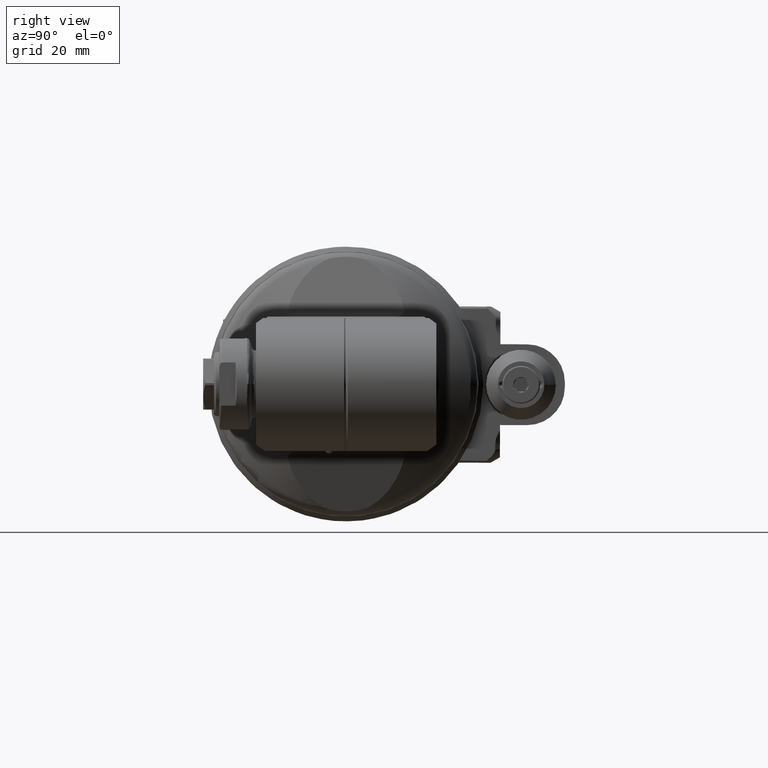
[diagram: clean part render]
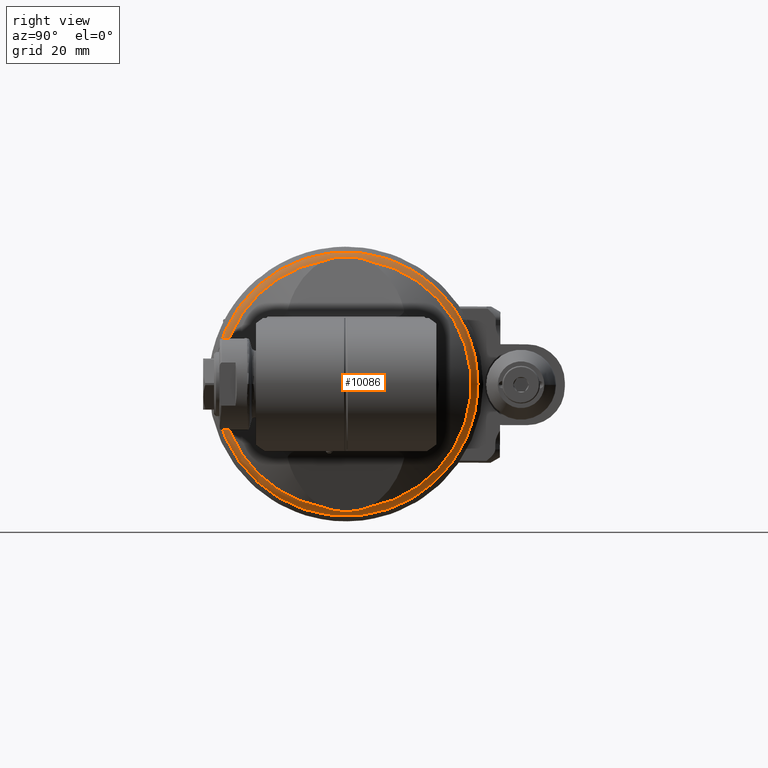
[diagram: same view with one face highlighted and labeled with its STEP entity id]
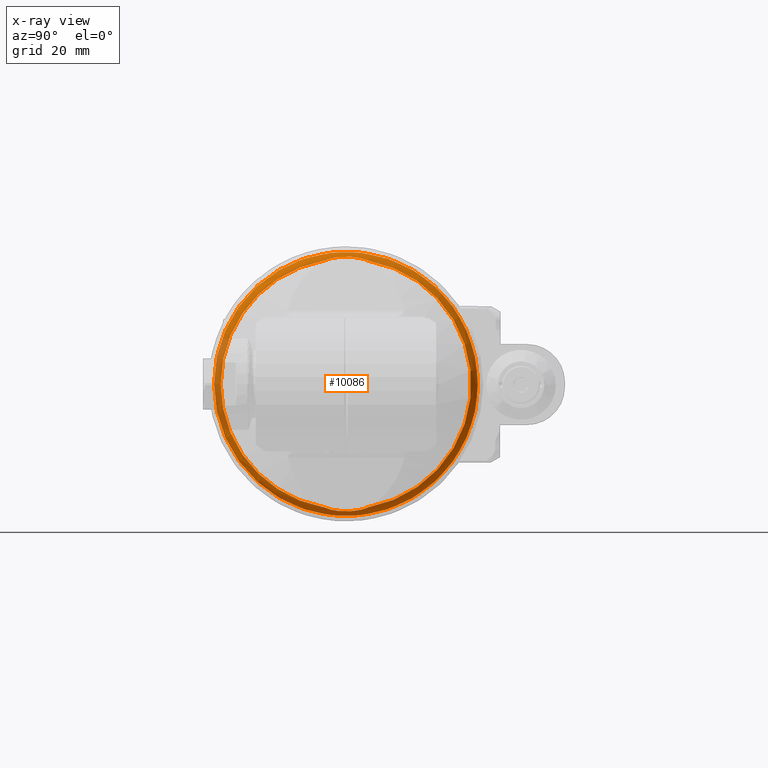
[diagram: x-ray of the same camera — body ghosted, the highlighted face saturated]
A machine part, right view. The second image highlights one B-rep face of the part: STEP entity #10086.
The next image is the same camera in x-ray: the body ghosted, the highlighted face saturated — about 12% of this face is hidden behind the body in this view.
In plain terms, the highlighted toroidal blend (fillet) surface has major radius 44 mm and minor (blend) radius 5 mm.
Its self-contained STEP definition (entity closure, byte-faithful):
#93=B_SPLINE_CURVE_WITH_KNOTS('',3,(#15480,#15481,#15482,#15483,#15484,
#15485,#15486,#15487,#15488,#15489),.UNSPECIFIED.,.F.,.F.,(4,2,2,2,4),(-2.66047980361547,
-2.55491938589005,-1.86220819496479,-1.16949700403954,-1.06393658631412),
 .UNSPECIFIED.);
#98=B_SPLINE_CURVE_WITH_KNOTS('',3,(#15545,#15546,#15547,#15548,#15549,
#15550,#15551,#15552,#15553,#15554),.UNSPECIFIED.,.F.,.F.,(4,2,2,2,4),(1.0639365863142,
1.16949700403954,1.86220819496479,2.55491938589005,2.6604798036149),
 .UNSPECIFIED.);
#229=TOROIDAL_SURFACE('',#10987,44.,5.);
#2198=FACE_OUTER_BOUND('',#2822,.T.);
#2822=EDGE_LOOP('',(#6768,#6769,#6770,#6771,#6772,#6773,#6774,#6775));
#3522=CIRCLE('',#10978,46.5);
#3523=CIRCLE('',#10979,46.5);
#3524=CIRCLE('',#10985,46.5);
#3526=CIRCLE('',#10988,49.);
#3527=CIRCLE('',#10989,5.);
#4089=VERTEX_POINT('',#15476);
#4090=VERTEX_POINT('',#15478);
#4093=VERTEX_POINT('',#15502);
#4094=VERTEX_POINT('',#15504);
#4099=VERTEX_POINT('',#15543);
#4100=VERTEX_POINT('',#15559);
#5126=EDGE_CURVE('',#4090,#4089,#93,.T.);
#5129=EDGE_CURVE('',#4093,#4089,#3522,.T.);
#5130=EDGE_CURVE('',#4094,#4093,#3523,.T.);
#5138=EDGE_CURVE('',#4099,#4094,#98,.T.);
#5139=EDGE_CURVE('',#4090,#4099,#3524,.T.);
#5141=EDGE_CURVE('',#4100,#4100,#3526,.T.);
#5142=EDGE_CURVE('',#4100,#4093,#3527,.T.);
#6768=ORIENTED_EDGE('',*,*,#5141,.T.);
#6769=ORIENTED_EDGE('',*,*,#5142,.T.);
#6770=ORIENTED_EDGE('',*,*,#5129,.T.);
#6771=ORIENTED_EDGE('',*,*,#5126,.F.);
#6772=ORIENTED_EDGE('',*,*,#5139,.T.);
#6773=ORIENTED_EDGE('',*,*,#5138,.T.);
#6774=ORIENTED_EDGE('',*,*,#5130,.T.);
#6775=ORIENTED_EDGE('',*,*,#5142,.F.);
#10086=ADVANCED_FACE('',(#2198),#229,.T.);
#10978=AXIS2_PLACEMENT_3D('',#15503,#12325,#12326);
#10979=AXIS2_PLACEMENT_3D('',#15505,#12327,#12328);
#10985=AXIS2_PLACEMENT_3D('',#15556,#12341,#12342);
#10987=AXIS2_PLACEMENT_3D('',#15558,#12345,#12346);
#10988=AXIS2_PLACEMENT_3D('',#15560,#12347,#12348);
#10989=AXIS2_PLACEMENT_3D('',#15561,#12349,#12350);
#12325=DIRECTION('center_axis',(-1.,0.,0.));
#12326=DIRECTION('ref_axis',(0.,-0.177495530843392,-0.984121606576455));
#12327=DIRECTION('center_axis',(-1.,0.,0.));
#12328=DIRECTION('ref_axis',(0.,-0.177495530843392,-0.984121606576455));
#12341=DIRECTION('center_axis',(-1.,0.,0.));
#12342=DIRECTION('ref_axis',(0.,1.,0.));
#12345=DIRECTION('center_axis',(-1.,0.,0.));
#12346=DIRECTION('ref_axis',(0.,1.,0.));
#12347=DIRECTION('center_axis',(1.,0.,0.));
#12348=DIRECTION('ref_axis',(0.,-1.,0.));
#12349=DIRECTION('center_axis',(0.,1.22464679914735E-16,1.));
#12350=DIRECTION('ref_axis',(0.,-1.,1.22464679914735E-16));
#15476=CARTESIAN_POINT('',(20.44337571763,-8.253542184218,45.7616547058));
#15478=CARTESIAN_POINT('',(20.44337571763,8.253542184218,45.7616547058));
#15480=CARTESIAN_POINT('Ctrl Pts',(20.4433757176352,8.25354218421699,45.7616547057999));
#15481=CARTESIAN_POINT('Ctrl Pts',(20.38202033743,7.9176169654829,45.9302272274759));
#15482=CARTESIAN_POINT('Ctrl Pts',(20.3286442922213,7.5498353437811,46.0768767064267));
#15483=CARTESIAN_POINT('Ctrl Pts',(20.00800054598,5.05955185517031,46.9578381589137));
#15484=CARTESIAN_POINT('Ctrl Pts',(19.8934108308826,2.30903730308418,47.2726708136457));
#15485=CARTESIAN_POINT('Ctrl Pts',(19.8934108308826,-2.30903730308418,47.2726708136457));
#15486=CARTESIAN_POINT('Ctrl Pts',(20.00800054598,-5.05955185517031,46.9578381589137));
#15487=CARTESIAN_POINT('Ctrl Pts',(20.3286442922213,-7.5498353437811,46.0768767064266));
#15488=CARTESIAN_POINT('Ctrl Pts',(20.38202033743,-7.91761696548291,45.9302272274759));
#15489=CARTESIAN_POINT('Ctrl Pts',(20.4433757176352,-8.253542184217,45.7616547057999));
#15502=CARTESIAN_POINT('',(20.44337571763,-46.5,5.69460761603519E-15));
#15503=CARTESIAN_POINT('Origin',(20.44337571763,0.,0.));
#15504=CARTESIAN_POINT('',(20.44337571763,-8.253542184216,-45.76165470581));
#15505=CARTESIAN_POINT('Origin',(20.44337571763,0.,0.));
#15543=CARTESIAN_POINT('',(20.44337571763,8.253542184217,-45.7616547058));
#15545=CARTESIAN_POINT('Ctrl Pts',(20.4433757176351,8.25354218421622,-45.7616547058003));
#15546=CARTESIAN_POINT('Ctrl Pts',(20.3820203374299,7.91761696548234,-45.9302272274761));
#15547=CARTESIAN_POINT('Ctrl Pts',(20.3286442922212,7.54983534378084,-46.0768767064267));
#15548=CARTESIAN_POINT('Ctrl Pts',(20.00800054598,5.05955185517031,-46.9578381589137));
#15549=CARTESIAN_POINT('Ctrl Pts',(19.8934108308826,2.30903730308418,-47.2726708136457));
#15550=CARTESIAN_POINT('Ctrl Pts',(19.8934108308826,-2.30903730308418,-47.2726708136457));
#15551=CARTESIAN_POINT('Ctrl Pts',(20.00800054598,-5.05955185517031,-46.9578381589137));
#15552=CARTESIAN_POINT('Ctrl Pts',(20.328644292221,-7.54983534377932,-46.0768767064273));
#15553=CARTESIAN_POINT('Ctrl Pts',(20.3820203374294,-7.91761696547893,-45.9302272274775));
#15554=CARTESIAN_POINT('Ctrl Pts',(20.4433757176342,-8.25354218421154,-45.7616547058027));
#15556=CARTESIAN_POINT('Origin',(20.44337571763,0.,0.));
#15558=CARTESIAN_POINT('Origin',(16.11324869871,0.,0.));
#15559=CARTESIAN_POINT('',(16.11324869871,-49.,6.00076931582203E-15));
#15560=CARTESIAN_POINT('Origin',(16.11324869871,0.,0.));
#15561=CARTESIAN_POINT('Origin',(16.11324869871,-44.,5.38844591624836E-15));